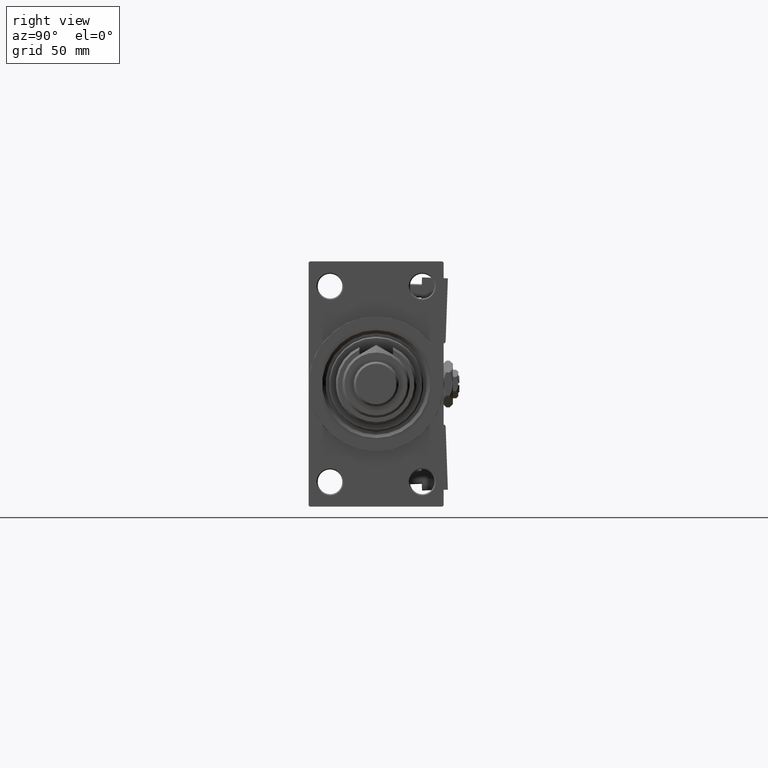
[diagram: clean part render]
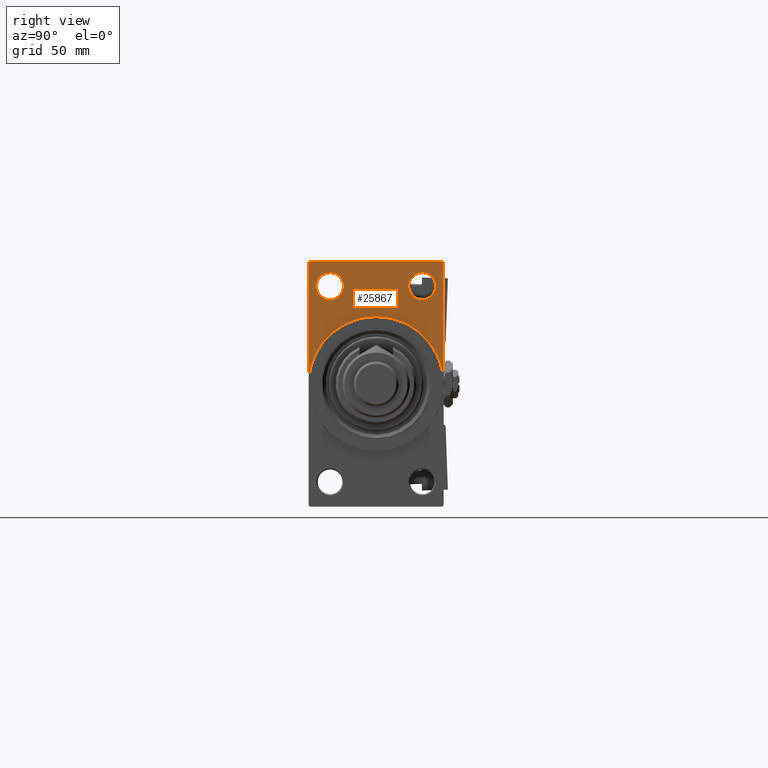
[diagram: same view with one face highlighted and labeled with its STEP entity id]
A machine part, right view. The second image highlights one B-rep face of the part: STEP entity #25867.
In plain terms, the highlighted planar face has unit normal (-1, 0, 0).
Its self-contained STEP definition (entity closure, byte-faithful):
#138 = AXIS2_PLACEMENT_3D ( 'NONE', #30914, #14628, #31471 ) ;
#286 = CARTESIAN_POINT ( 'NONE',  ( 167.9999999999999716, 0.000000000000000000, 30.00000000000000000 ) ) ;
#365 = VERTEX_POINT ( 'NONE', #34300 ) ;
#1664 = VECTOR ( 'NONE', #24732, 1000.000000000000000 ) ;
#1992 = AXIS2_PLACEMENT_3D ( 'NONE', #16042, #24309, #41433 ) ;
#2337 = LINE ( 'NONE', #31864, #15462 ) ;
#2957 = LINE ( 'NONE', #19793, #1664 ) ;
#3334 = DIRECTION ( 'NONE',  ( 1.000000000000000000, 0.000000000000000000, 0.000000000000000000 ) ) ;
#3542 = ORIENTED_EDGE ( 'NONE', *, *, #48792, .F. ) ;
#3772 = EDGE_CURVE ( 'NONE', #9776, #28137, #16700, .T. ) ;
#4019 = CARTESIAN_POINT ( 'NONE',  ( 167.9999999999999716, -20.50000000000000000, 43.50000000000000000 ) ) ;
#4258 = EDGE_CURVE ( 'NONE', #38137, #25316, #29465, .T. ) ;
#5466 = CIRCLE ( 'NONE', #41654, 5.999999999999977796 ) ;
#5757 = EDGE_CURVE ( 'NONE', #14447, #38137, #2957, .T. ) ;
#6513 = ORIENTED_EDGE ( 'NONE', *, *, #5757, .T. ) ;
#8670 = ORIENTED_EDGE ( 'NONE', *, *, #21200, .T. ) ;
#9653 = DIRECTION ( 'NONE',  ( 0.000000000000000000, 0.000000000000000000, 1.000000000000000000 ) ) ;
#9776 = VERTEX_POINT ( 'NONE', #47436 ) ;
#9987 = CARTESIAN_POINT ( 'NONE',  ( 167.9999999999999716, 29.99999999999999645, 53.99999999999999289 ) ) ;
#10509 = AXIS2_PLACEMENT_3D ( 'NONE', #44494, #3334, #15489 ) ;
#10972 = EDGE_LOOP ( 'NONE', ( #6513, #31361, #48112, #3542, #39747, #54614, #39496 ) ) ;
#11194 = CARTESIAN_POINT ( 'NONE',  ( 167.9999999999999716, -29.49999999999997513, 54.50000000000000000 ) ) ;
#11423 = EDGE_CURVE ( 'NONE', #41771, #44491, #26621, .T. ) ;
#13580 = DIRECTION ( 'NONE',  ( -1.000000000000000000, 0.000000000000000000, -0.000000000000000000 ) ) ;
#13735 = VERTEX_POINT ( 'NONE', #38491 ) ;
#14265 = DIRECTION ( 'NONE',  ( 0.000000000000000000, 0.000000000000000000, -1.000000000000000000 ) ) ;
#14447 = VERTEX_POINT ( 'NONE', #46300 ) ;
#14628 = DIRECTION ( 'NONE',  ( -1.000000000000000000, 0.000000000000000000, -0.000000000000000000 ) ) ;
#15462 = VECTOR ( 'NONE', #39608, 1000.000000000000000 ) ;
#15489 = DIRECTION ( 'NONE',  ( 0.000000000000000000, 0.000000000000000000, -1.000000000000000000 ) ) ;
#16042 = CARTESIAN_POINT ( 'NONE',  ( 167.9999999999999716, -20.50000000000000000, 43.50000000000000000 ) ) ;
#16700 = CIRCLE ( 'NONE', #10509, 30.00000000000000000 ) ;
#16740 = VECTOR ( 'NONE', #21196, 1000.000000000000114 ) ;
#17441 = FACE_OUTER_BOUND ( 'NONE', #10972, .T. ) ;
#18757 = DIRECTION ( 'NONE',  ( 0.000000000000000000, 0.000000000000000000, -1.000000000000000000 ) ) ;
#19224 = CIRCLE ( 'NONE', #28901, 5.999999999999977796 ) ;
#19793 = CARTESIAN_POINT ( 'NONE',  ( 167.9999999999999716, 29.99999999999999645, 54.49999999999999289 ) ) ;
#20857 = EDGE_CURVE ( 'NONE', #25316, #13735, #35244, .T. ) ;
#21196 = DIRECTION ( 'NONE',  ( -0.000000000000000000, -0.7071067811865451302, -0.7071067811865500152 ) ) ;
#21200 = EDGE_CURVE ( 'NONE', #365, #32896, #19224, .T. ) ;
#21367 = CIRCLE ( 'NONE', #1992, 5.999999999999977796 ) ;
#22015 = EDGE_CURVE ( 'NONE', #46256, #9776, #47757, .T. ) ;
#22082 = AXIS2_PLACEMENT_3D ( 'NONE', #39532, #13580, #31792 ) ;
#22685 = FACE_BOUND ( 'NONE', #24854, .T. ) ;
#24309 = DIRECTION ( 'NONE',  ( -1.000000000000000000, 0.000000000000000000, -0.000000000000000000 ) ) ;
#24732 = DIRECTION ( 'NONE',  ( 0.000000000000000000, -1.000000000000000000, 1.156482317317871478E-16 ) ) ;
#24854 = EDGE_LOOP ( 'NONE', ( #51631, #49883 ) ) ;
#25316 = VERTEX_POINT ( 'NONE', #38839 ) ;
#25332 = CARTESIAN_POINT ( 'NONE',  ( 167.9999999999999716, -30.00000000000000000, 53.99999999999997158 ) ) ;
#25867 = ADVANCED_FACE ( 'NONE', ( #51430, #22685, #17441 ), #34287, .F. ) ;
#26621 = CIRCLE ( 'NONE', #138, 5.999999999999977796 ) ;
#28137 = VERTEX_POINT ( 'NONE', #286 ) ;
#28901 = AXIS2_PLACEMENT_3D ( 'NONE', #4019, #37973, #37709 ) ;
#29465 = LINE ( 'NONE', #25332, #16740 ) ;
#29502 = DIRECTION ( 'NONE',  ( 1.000000000000000000, 0.000000000000000000, 0.000000000000000000 ) ) ;
#30914 = CARTESIAN_POINT ( 'NONE',  ( 167.9999999999999716, 20.50000000000000000, 43.50000000000000000 ) ) ;
#31361 = ORIENTED_EDGE ( 'NONE', *, *, #4258, .T. ) ;
#31471 = DIRECTION ( 'NONE',  ( 0.000000000000000000, 0.000000000000000000, 1.000000000000000000 ) ) ;
#31792 = DIRECTION ( 'NONE',  ( -0.000000000000000000, 0.000000000000000000, 1.000000000000000000 ) ) ;
#31864 = CARTESIAN_POINT ( 'NONE',  ( 167.9999999999999716, 29.50000000000002132, 54.49999999999999289 ) ) ;
#32896 = VERTEX_POINT ( 'NONE', #47740 ) ;
#33507 = EDGE_CURVE ( 'NONE', #32896, #365, #21367, .T. ) ;
#33658 = DIRECTION ( 'NONE',  ( 0.000000000000000000, 0.000000000000000000, -1.000000000000000000 ) ) ;
#34287 = PLANE ( 'NONE',  #22082 ) ;
#34300 = CARTESIAN_POINT ( 'NONE',  ( 167.9999999999999716, -20.50000000000000000, 49.49999999999997158 ) ) ;
#34699 = CARTESIAN_POINT ( 'NONE',  ( 167.9999999999999716, 20.50000000000000000, 49.49999999999997158 ) ) ;
#34812 = EDGE_LOOP ( 'NONE', ( #42281, #8670 ) ) ;
#34976 = CARTESIAN_POINT ( 'NONE',  ( 167.9999999999999716, -30.00000000000000000, 54.50000000000000000 ) ) ;
#35136 = VECTOR ( 'NONE', #18757, 1000.000000000000000 ) ;
#35244 = LINE ( 'NONE', #34976, #38631 ) ;
#37709 = DIRECTION ( 'NONE',  ( 0.000000000000000000, 0.000000000000000000, 1.000000000000000000 ) ) ;
#37973 = DIRECTION ( 'NONE',  ( -1.000000000000000000, 0.000000000000000000, -0.000000000000000000 ) ) ;
#38137 = VERTEX_POINT ( 'NONE', #11194 ) ;
#38373 = DIRECTION ( 'NONE',  ( -1.000000000000000000, 0.000000000000000000, -0.000000000000000000 ) ) ;
#38491 = CARTESIAN_POINT ( 'NONE',  ( 167.9999999999999716, -30.00000000000000000, 0.000000000000000000 ) ) ;
#38631 = VECTOR ( 'NONE', #14265, 1000.000000000000000 ) ;
#38839 = CARTESIAN_POINT ( 'NONE',  ( 167.9999999999999716, -30.00000000000000000, 53.99999999999997158 ) ) ;
#39147 = CIRCLE ( 'NONE', #41832, 30.00000000000000000 ) ;
#39496 = ORIENTED_EDGE ( 'NONE', *, *, #51319, .T. ) ;
#39532 = CARTESIAN_POINT ( 'NONE',  ( 167.9999999999999716, 0.000000000000000000, 0.000000000000000000 ) ) ;
#39608 = DIRECTION ( 'NONE',  ( 0.000000000000000000, -0.7071067811865279218, 0.7071067811865671127 ) ) ;
#39747 = ORIENTED_EDGE ( 'NONE', *, *, #3772, .F. ) ;
#41115 = EDGE_CURVE ( 'NONE', #44491, #41771, #5466, .T. ) ;
#41433 = DIRECTION ( 'NONE',  ( 0.000000000000000000, 0.000000000000000000, 1.000000000000000000 ) ) ;
#41654 = AXIS2_PLACEMENT_3D ( 'NONE', #51081, #38373, #9653 ) ;
#41771 = VERTEX_POINT ( 'NONE', #47848 ) ;
#41832 = AXIS2_PLACEMENT_3D ( 'NONE', #46357, #29502, #33658 ) ;
#42281 = ORIENTED_EDGE ( 'NONE', *, *, #33507, .T. ) ;
#44151 = CARTESIAN_POINT ( 'NONE',  ( 167.9999999999999716, 29.99999999999999645, 54.49999999999999289 ) ) ;
#44491 = VERTEX_POINT ( 'NONE', #34699 ) ;
#44494 = CARTESIAN_POINT ( 'NONE',  ( 167.9999999999999716, 0.000000000000000000, 0.000000000000000000 ) ) ;
#46256 = VERTEX_POINT ( 'NONE', #9987 ) ;
#46300 = CARTESIAN_POINT ( 'NONE',  ( 167.9999999999999716, 29.50000000000002132, 54.49999999999999289 ) ) ;
#46357 = CARTESIAN_POINT ( 'NONE',  ( 167.9999999999999716, 0.000000000000000000, 0.000000000000000000 ) ) ;
#47436 = CARTESIAN_POINT ( 'NONE',  ( 167.9999999999999716, 30.00000000000000000, 0.000000000000000000 ) ) ;
#47740 = CARTESIAN_POINT ( 'NONE',  ( 167.9999999999999716, -20.50000000000000000, 37.50000000000002132 ) ) ;
#47757 = LINE ( 'NONE', #44151, #35136 ) ;
#47848 = CARTESIAN_POINT ( 'NONE',  ( 167.9999999999999716, 20.50000000000000000, 37.50000000000002132 ) ) ;
#48112 = ORIENTED_EDGE ( 'NONE', *, *, #20857, .T. ) ;
#48792 = EDGE_CURVE ( 'NONE', #28137, #13735, #39147, .T. ) ;
#49883 = ORIENTED_EDGE ( 'NONE', *, *, #41115, .T. ) ;
#51081 = CARTESIAN_POINT ( 'NONE',  ( 167.9999999999999716, 20.50000000000000000, 43.50000000000000000 ) ) ;
#51319 = EDGE_CURVE ( 'NONE', #46256, #14447, #2337, .T. ) ;
#51430 = FACE_BOUND ( 'NONE', #34812, .T. ) ;
#51631 = ORIENTED_EDGE ( 'NONE', *, *, #11423, .T. ) ;
#54614 = ORIENTED_EDGE ( 'NONE', *, *, #22015, .F. ) ;